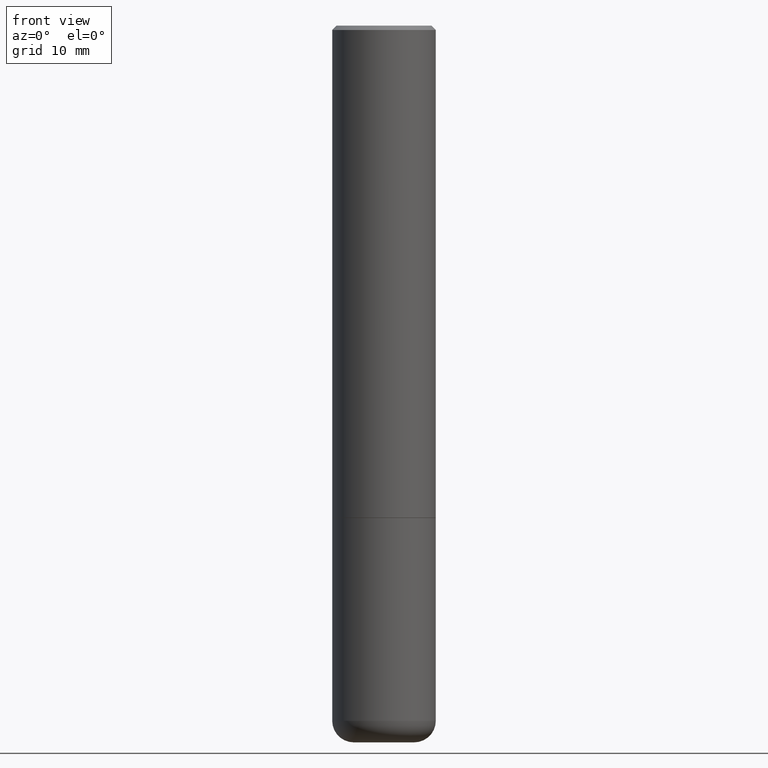
[diagram: clean part render]
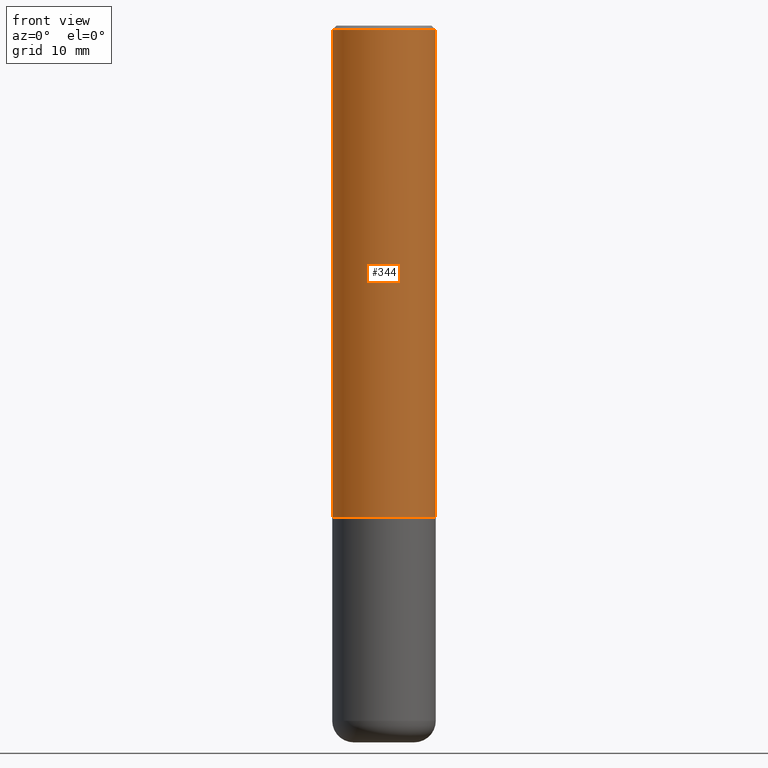
[diagram: same view with one face highlighted and labeled with its STEP entity id]
A machine part, front view. The second image highlights one B-rep face of the part: STEP entity #344.
In plain terms, the highlighted cylindrical surface (partial cylindrical patch) has radius 5.9995 mm, axis along (-0, 0, 1).
Its self-contained STEP definition (entity closure, byte-faithful):
#10 = EDGE_CURVE ( 'NONE', #328, #106, #70, .T. ) ;
#20 = VECTOR ( 'NONE', #257, 39.37007874015748143 ) ;
#28 = DIRECTION ( 'NONE',  ( 1.000000000000000000, -6.982962677686266711E-15, 0.000000000000000000 ) ) ;
#33 = VERTEX_POINT ( 'NONE', #158 ) ;
#38 = CARTESIAN_POINT ( 'NONE',  ( -0.2362000000000001321, 1.678301941865357577E-15, -1.161852468318209457E-29 ) ) ;
#46 = CARTESIAN_POINT ( 'NONE',  ( -0.2361999999999999655, 1.579546157692632833E-15, -0.02000000000000005246 ) ) ;
#54 = AXIS2_PLACEMENT_3D ( 'NONE', #199, #323, #28 ) ;
#70 = LINE ( 'NONE', #38, #165 ) ;
#85 = FACE_OUTER_BOUND ( 'NONE', #382, .T. ) ;
#106 = VERTEX_POINT ( 'NONE', #46 ) ;
#109 = CARTESIAN_POINT ( 'NONE',  ( -0.2362000000000002986, -2.272483767102600582E-15, -2.243100000000000094 ) ) ;
#125 = LINE ( 'NONE', #408, #20 ) ;
#158 = CARTESIAN_POINT ( 'NONE',  ( 0.2362000000000002709, -9.481117575628559013E-15, -2.243100000000000094 ) ) ;
#165 = VECTOR ( 'NONE', #171, 39.37007874015748143 ) ;
#169 = CARTESIAN_POINT ( 'NONE',  ( 0.000000000000000000, 0.000000000000000000, 0.000000000000000000 ) ) ;
#171 = DIRECTION ( 'NONE',  ( -2.445468806185136877E-29, 3.491481338843145188E-15, 1.000000000000000000 ) ) ;
#183 = EDGE_CURVE ( 'NONE', #33, #261, #125, .T. ) ;
#199 = CARTESIAN_POINT ( 'NONE',  ( 4.890937612370285420E-31, -6.982962677686308865E-17, -0.02000000000000005246 ) ) ;
#201 = AXIS2_PLACEMENT_3D ( 'NONE', #347, #303, #262 ) ;
#210 = DIRECTION ( 'NONE',  ( 1.000000000000000000, -6.982962677686266711E-15, 4.876176775795936353E-29 ) ) ;
#257 = DIRECTION ( 'NONE',  ( -2.445468806185136877E-29, 3.491481338843145188E-15, 1.000000000000000000 ) ) ;
#261 = VERTEX_POINT ( 'NONE', #352 ) ;
#262 = DIRECTION ( 'NONE',  ( 1.000000000000000000, -6.982962677686269077E-15, 0.000000000000000000 ) ) ;
#263 = ORIENTED_EDGE ( 'NONE', *, *, #10, .F. ) ;
#265 = EDGE_CURVE ( 'NONE', #106, #261, #280, .T. ) ;
#280 = CIRCLE ( 'NONE', #54, 0.2361999999999999655 ) ;
#303 = DIRECTION ( 'NONE',  ( -2.445468806185136597E-29, 3.491481338843145583E-15, 1.000000000000000000 ) ) ;
#323 = DIRECTION ( 'NONE',  ( -2.445468806185136597E-29, 3.491481338843145583E-15, 1.000000000000000000 ) ) ;
#328 = VERTEX_POINT ( 'NONE', #109 ) ;
#331 = ORIENTED_EDGE ( 'NONE', *, *, #183, .T. ) ;
#333 = CIRCLE ( 'NONE', #201, 0.2362000000000002709 ) ;
#334 = EDGE_CURVE ( 'NONE', #328, #33, #333, .T. ) ;
#344 = ADVANCED_FACE ( 'NONE', ( #85 ), #394, .T. ) ;
#347 = CARTESIAN_POINT ( 'NONE',  ( 5.485431079153880270E-29, -7.831741791159060910E-15, -2.243100000000000094 ) ) ;
#352 = CARTESIAN_POINT ( 'NONE',  ( 0.2361999999999999655, -1.690279253850498574E-15, -0.02000000000000005246 ) ) ;
#359 = ORIENTED_EDGE ( 'NONE', *, *, #265, .F. ) ;
#362 = ORIENTED_EDGE ( 'NONE', *, *, #334, .T. ) ;
#366 = DIRECTION ( 'NONE',  ( -2.445468806185136597E-29, 3.491481338843145583E-15, 1.000000000000000000 ) ) ;
#370 = AXIS2_PLACEMENT_3D ( 'NONE', #169, #366, #210 ) ;
#382 = EDGE_LOOP ( 'NONE', ( #263, #362, #331, #359 ) ) ;
#394 = CYLINDRICAL_SURFACE ( 'NONE', #370, 0.2362000000000001321 ) ;
#408 = CARTESIAN_POINT ( 'NONE',  ( 0.2362000000000001321, -1.649375784469497117E-15, 1.151752954443000789E-29 ) ) ;